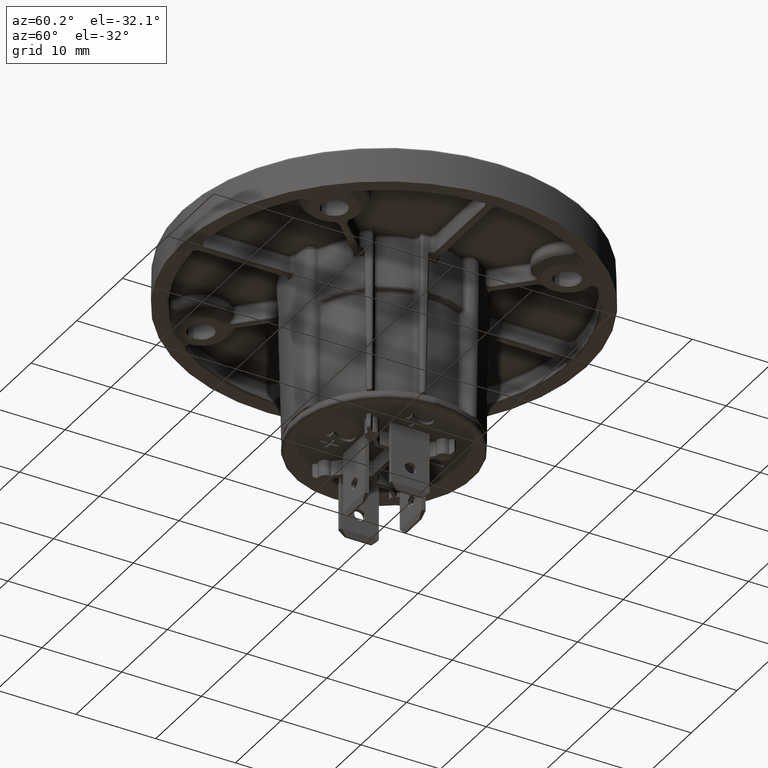
[diagram: clean part render]
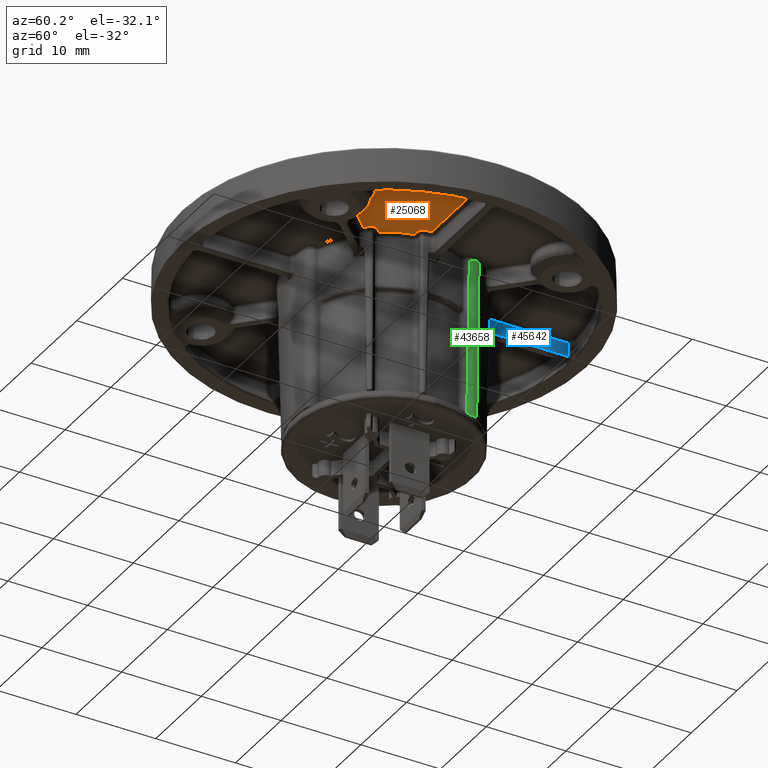
[diagram: same view with three faces highlighted in distinct colors, each labeled with its STEP entity id]
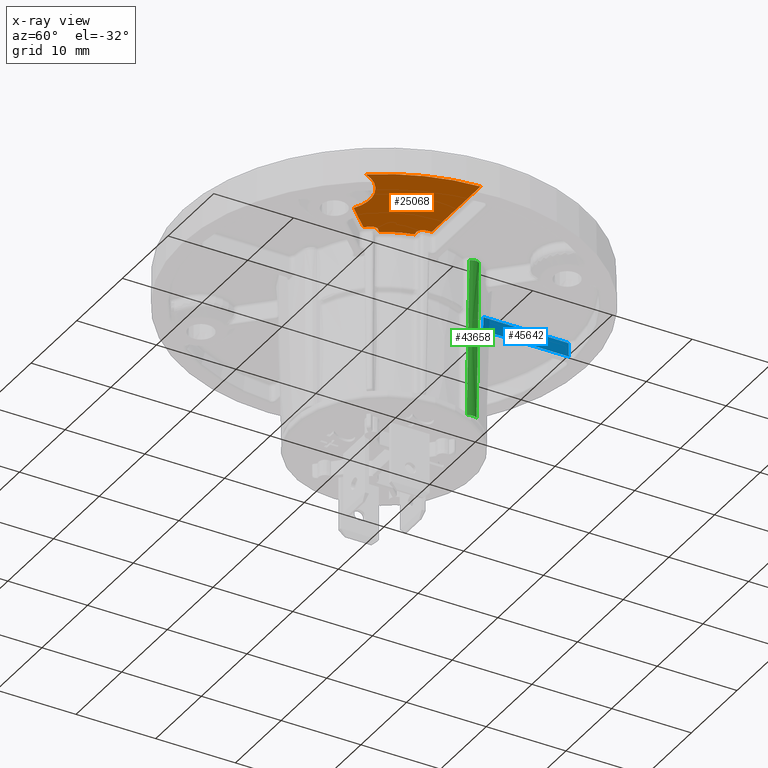
[diagram: x-ray of the same camera — body ghosted, the three highlighted faces saturated]
A machine part, auxiliary view with three faces highlighted in distinct colors.
The next image is the same camera in x-ray (body ghosted, the three faces saturated) — at least one of them is partly hidden behind the body in this view.
Their STEP definitions:

[orange] entity #25068 — the highlighted planar face has unit normal (0, 0, -1).
#749=CARTESIAN_POINT('',(1.46E1,-1.46E1,2.5E0));
#750=DIRECTION('',(0.E0,0.E0,-1.E0));
#751=DIRECTION('',(-5.335914431957E-1,8.457423790660E-1,0.E0));
#752=AXIS2_PLACEMENT_3D('',#749,#750,#751);
#754=CARTESIAN_POINT('',(0.E0,0.E0,2.5E0));
#755=DIRECTION('',(0.E0,0.E0,1.E0));
#756=DIRECTION('',(8.215173923747E-1,-5.701834564646E-1,0.E0));
#757=AXIS2_PLACEMENT_3D('',#754,#755,#756);
#759=DIRECTION('',(-1.E0,0.E0,0.E0));
#760=VECTOR('',#759,1.069033468450E1);
#761=CARTESIAN_POINT('',(2.288719151428E1,-9.913486315578E-1,2.5E0));
#762=LINE('',#761,#760);
#763=CARTESIAN_POINT('',(0.E0,0.E0,2.5E0));
#764=DIRECTION('',(0.E0,0.E0,-1.E0));
#765=DIRECTION('',(9.967131365640E-1,-8.101187197468E-2,0.E0));
#766=AXIS2_PLACEMENT_3D('',#763,#764,#765);
#768=CARTESIAN_POINT('',(1.211405447305E1,-1.730830111359E0,2.499999999799E0));
#769=CARTESIAN_POINT('',(1.211015580503E1,-1.758115645404E0,2.499999961242E0));
#770=CARTESIAN_POINT('',(1.209959231595E1,-1.812009052195E0,2.500000017988E0));
#771=CARTESIAN_POINT('',(1.207542266327E1,-1.891146775360E0,2.499999995180E0));
#772=CARTESIAN_POINT('',(1.204308515104E1,-1.967601566200E0,2.500000001291E0));
#773=CARTESIAN_POINT('',(1.200314059922E1,-2.040072878425E0,2.499999999654E0));
#774=CARTESIAN_POINT('',(1.195604096330E1,-2.107911068991E0,2.500000000093E0));
#775=CARTESIAN_POINT('',(1.190219544550E1,-2.170561966997E0,2.499999999976E0));
#776=CARTESIAN_POINT('',(1.184208128765E1,-2.227421885419E0,2.500000000005E0));
#777=CARTESIAN_POINT('',(1.177644244616E1,-2.277759233245E0,2.500000000005E0));
#778=CARTESIAN_POINT('',(1.170605980348E1,-2.321008898193E0,2.499999999974E0));
#779=CARTESIAN_POINT('',(1.163159383484E1,-2.356799443155E0,2.500000000098E0));
#780=CARTESIAN_POINT('',(1.155351749206E1,-2.384826628137E0,2.499999999634E0));
#781=CARTESIAN_POINT('',(1.147307249013E1,-2.404605786684E0,2.500000001368E0));
#782=CARTESIAN_POINT('',(1.139080439717E1,-2.416020682809E0,2.499999994896E0));
#783=CARTESIAN_POINT('',(1.130729684001E1,-2.418829008210E0,2.500000019050E0));
#784=CARTESIAN_POINT('',(1.125211113636E1,-2.414943447469E0,2.499999958953E0));
#785=CARTESIAN_POINT('',(1.122453112142E1,-2.411557224959E0,2.5E0));
#787=DIRECTION('',(-9.925461516413E-1,1.218693434052E-1,0.E0));
#788=VECTOR('',#787,4.411523677107E-1);
#789=CARTESIAN_POINT('',(1.122453112142E1,-2.411557224959E0,2.5E0));
#790=LINE('',#789,#788);
#791=CARTESIAN_POINT('',(0.E0,0.E0,2.5E0));
#792=DIRECTION('',(0.E0,0.E0,-1.E0));
#793=DIRECTION('',(9.769338326783E-1,-2.135422360295E-1,0.E0));
#794=AXIS2_PLACEMENT_3D('',#791,#792,#793);
#796=DIRECTION('',(7.880107536070E-1,-6.156614753253E-1,0.E0));
#797=VECTOR('',#796,4.411523672368E-1);
#798=CARTESIAN_POINT('',(9.294537728853E0,-5.960113087064E0,2.5E0));
#799=LINE('',#798,#797);
#800=CARTESIAN_POINT('',(9.642170538215E0,-6.231713604320E0,2.5E0));
#801=CARTESIAN_POINT('',(9.663944994044E0,-6.248725888620E0,2.499999961848E0));
#802=CARTESIAN_POINT('',(9.705487971778E0,-6.284800874714E0,2.500000017707E0));
#803=CARTESIAN_POINT('',(9.761982068087E0,-6.345069966367E0,2.499999995256E0));
#804=CARTESIAN_POINT('',(9.812244686065E0,-6.411247755981E0,2.500000001271E0));
#805=CARTESIAN_POINT('',(9.855260445012E0,-6.482073425784E0,2.499999999659E0));
#806=CARTESIAN_POINT('',(9.890666122525E0,-6.556776079795E0,2.500000000091E0));
#807=CARTESIAN_POINT('',(9.918176670466E0,-6.634665862816E0,2.499999999976E0));
#808=CARTESIAN_POINT('',(9.937548825450E0,-6.715097045364E0,2.500000000005E0));
#809=CARTESIAN_POINT('',(9.948520578630E0,-6.797119360497E0,2.500000000005E0));
#810=CARTESIAN_POINT('',(9.950974299218E0,-6.879713267169E0,2.499999999974E0));
#811=CARTESIAN_POINT('',(9.944923438561E0,-6.962066507390E0,2.500000000099E0));
#812=CARTESIAN_POINT('',(9.930380048580E0,-7.043591246149E0,2.499999999630E0));
#813=CARTESIAN_POINT('',(9.907449149926E0,-7.123276540744E0,2.500000001380E0));
#814=CARTESIAN_POINT('',(9.876462148456E0,-7.200089388962E0,2.499999994852E0));
#815=CARTESIAN_POINT('',(9.837371717544E0,-7.273833366797E0,2.500000019214E0));
#816=CARTESIAN_POINT('',(9.806507254112E0,-7.319786482359E0,2.499999958599E0));
#817=CARTESIAN_POINT('',(9.789811774184E0,-7.342048356572E0,2.499999999883E0));
#819=CARTESIAN_POINT('',(0.E0,0.E0,2.5E0));
#820=DIRECTION('',(0.E0,0.E0,-1.E0));
#821=DIRECTION('',(8.000121781955E-1,-5.999837620627E-1,0.E0));
#822=AXIS2_PLACEMENT_3D('',#819,#820,#821);
#824=DIRECTION('',(7.071067811063E-1,-7.071067812668E-1,0.E0));
#825=VECTOR('',#824,4.070085827151E0);
#826=CARTESIAN_POINT('',(9.325469513399E0,-7.923490833610E0,2.5E0));
#827=LINE('',#826,#825);
#22515=CARTESIAN_POINT('',(1.220345480179E1,-1.080147612313E1,2.5E0));
#22516=CARTESIAN_POINT('',(1.881985553870E1,-1.306213402317E1,2.5E0));
#22517=VERTEX_POINT('',#22515);
#22518=VERTEX_POINT('',#22516);
#22521=CARTESIAN_POINT('',(1.219685682979E1,-9.913486315576E-1,2.5E0));
#22522=CARTESIAN_POINT('',(1.211405447245E1,-1.730830111271E0,2.5E0));
#22523=VERTEX_POINT('',#22521);
#22524=VERTEX_POINT('',#22522);
#22529=VERTEX_POINT('',#785);
#22531=CARTESIAN_POINT('',(1.078666703657E1,-2.357794275565E0,2.5E0));
#22532=VERTEX_POINT('',#22531);
#22537=CARTESIAN_POINT('',(9.294537728851E0,-5.960113087062E0,2.5E0));
#22538=VERTEX_POINT('',#22537);
#22543=CARTESIAN_POINT('',(9.642170538215E0,-6.231713604320E0,2.5E0));
#22544=VERTEX_POINT('',#22543);
#22547=VERTEX_POINT('',#817);
#22549=CARTESIAN_POINT('',(9.325469513399E0,-7.923490833610E0,2.5E0));
#22550=VERTEX_POINT('',#22549);
#22757=CARTESIAN_POINT('',(2.288719151428E1,-9.913486315578E-1,2.5E0));
#22758=VERTEX_POINT('',#22757);
#25039=CARTESIAN_POINT('',(0.E0,0.E0,2.5E0));
#25040=DIRECTION('',(0.E0,0.E0,-1.E0));
#25041=DIRECTION('',(-1.E0,0.E0,0.E0));
#25042=AXIS2_PLACEMENT_3D('',#25039,#25040,#25041);
#25043=PLANE('',#25042);
#25045=ORIENTED_EDGE('',*,*,#25044,.T.);
#25047=ORIENTED_EDGE('',*,*,#25046,.T.);
#25049=ORIENTED_EDGE('',*,*,#25048,.T.);
#25051=ORIENTED_EDGE('',*,*,#25050,.T.);
#25053=ORIENTED_EDGE('',*,*,#25052,.T.);
#25055=ORIENTED_EDGE('',*,*,#25054,.T.);
#25057=ORIENTED_EDGE('',*,*,#25056,.T.);
#25059=ORIENTED_EDGE('',*,*,#25058,.T.);
#25061=ORIENTED_EDGE('',*,*,#25060,.T.);
#25063=ORIENTED_EDGE('',*,*,#25062,.T.);
#25065=ORIENTED_EDGE('',*,*,#25064,.T.);
#25066=EDGE_LOOP('',(#25045,#25047,#25049,#25051,#25053,#25055,#25057,#25059,
#25061,#25063,#25065));
#25067=FACE_OUTER_BOUND('',#25066,.F.);
#25068=ADVANCED_FACE('',(#25067),#25043,.T.);
#753=CIRCLE('',#752,4.491348631558E0);
#758=CIRCLE('',#757,2.290865136844E1);
#767=CIRCLE('',#766,1.223707843546E1);
#786=B_SPLINE_CURVE_WITH_KNOTS('',3,(#768,#769,#770,#771,#772,#773,#774,#775,
#776,#777,#778,#779,#780,#781,#782,#783,#784,#785),.UNSPECIFIED.,.F.,.F.,(4,1,1,
1,1,1,1,1,1,1,1,1,1,1,1,4),(0.E0,6.666666666667E-2,1.333333333333E-1,2.E-1,
2.666666666667E-1,3.333333333333E-1,4.E-1,4.666666666667E-1,5.333333333333E-1,
6.E-1,6.666666666667E-1,7.333333333333E-1,8.E-1,8.666666666667E-1,
9.333333333333E-1,1.E0),.UNSPECIFIED.);
#795=CIRCLE('',#794,1.104134863156E1);
#818=B_SPLINE_CURVE_WITH_KNOTS('',3,(#800,#801,#802,#803,#804,#805,#806,#807,
#808,#809,#810,#811,#812,#813,#814,#815,#816,#817),.UNSPECIFIED.,.F.,.F.,(4,1,1,
1,1,1,1,1,1,1,1,1,1,1,1,4),(0.E0,6.666666666667E-2,1.333333333333E-1,2.E-1,
2.666666666667E-1,3.333333333333E-1,4.E-1,4.666666666667E-1,5.333333333333E-1,
6.E-1,6.666666666667E-1,7.333333333333E-1,8.E-1,8.666666666667E-1,
9.333333333333E-1,1.E0),.UNSPECIFIED.);
#823=CIRCLE('',#822,1.223707843546E1);
#25044=EDGE_CURVE('',#22517,#22518,#753,.T.);
#25046=EDGE_CURVE('',#22518,#22758,#758,.T.);
#25048=EDGE_CURVE('',#22758,#22523,#762,.T.);
#25050=EDGE_CURVE('',#22523,#22524,#767,.T.);
#25052=EDGE_CURVE('',#22524,#22529,#786,.T.);
#25054=EDGE_CURVE('',#22529,#22532,#790,.T.);
#25056=EDGE_CURVE('',#22532,#22538,#795,.T.);
#25058=EDGE_CURVE('',#22538,#22544,#799,.T.);
#25060=EDGE_CURVE('',#22544,#22547,#818,.T.);
#25062=EDGE_CURVE('',#22547,#22550,#823,.T.);
#25064=EDGE_CURVE('',#22550,#22517,#827,.T.);

[blue] entity #45642 — the highlighted planar face has unit normal (-0.9998, 0, 0.0175).
#15822=DIRECTION('',(0.E0,1.E0,0.E0));
#15823=VECTOR('',#15822,1.076418124562E1);
#15824=CARTESIAN_POINT('',(4.615074672916E-1,1.215423019909E1,
2.947642780688E-1));
#15825=LINE('',#15824,#15823);
#15826=CARTESIAN_POINT('',(4.615074672916E-1,1.215423019909E1,
2.947642780688E-1));
#15827=CARTESIAN_POINT('',(4.646380039547E-1,1.215869363695E1,
4.741126033804E-1));
#15828=CARTESIAN_POINT('',(4.710272910981E-1,1.216780141361E1,
8.401546186722E-1));
#15829=CARTESIAN_POINT('',(4.809262702163E-1,1.218190601213E1,
1.407266752532E0));
#15830=CARTESIAN_POINT('',(4.878748087489E-1,1.219180216703E1,
1.805348258468E0));
#15831=CARTESIAN_POINT('',(4.914247839796E-1,1.219685682979E1,
2.008726203219E0));
#15833=DIRECTION('',(0.E0,-1.E0,1.225465065147E-14));
#15834=VECTOR('',#15833,1.069033468449E1);
#15835=CARTESIAN_POINT('',(4.914247839797E-1,2.288719151428E1,
2.008726203219E0));
#15836=LINE('',#15835,#15834);
#15837=CARTESIAN_POINT('',(4.615074672917E-1,2.291841144471E1,
2.947642780688E-1));
#15838=CARTESIAN_POINT('',(4.646377819999E-1,2.291514705958E1,
4.740998875966E-1));
#15839=CARTESIAN_POINT('',(4.710266996260E-1,2.290848310313E1,
8.401207332578E-1));
#15840=CARTESIAN_POINT('',(4.809193752416E-1,2.289815999763E1,
1.406871739701E0));
#15841=CARTESIAN_POINT('',(4.878718222502E-1,2.289090170237E1,
1.805177162061E0));
#15842=CARTESIAN_POINT('',(4.914247839797E-1,2.288719151428E1,
2.008726203219E0));
#22571=CARTESIAN_POINT('',(4.914247839794E-1,1.219685682979E1,
2.008726203217E0));
#22573=VERTEX_POINT('',#22571);
#22595=CARTESIAN_POINT('',(4.914247839797E-1,2.288719151428E1,
2.008726203219E0));
#22596=VERTEX_POINT('',#22595);
#22677=CARTESIAN_POINT('',(4.615074672916E-1,1.215423019909E1,
2.947642780688E-1));
#22678=CARTESIAN_POINT('',(4.615074672917E-1,2.291841144471E1,
2.947642780688E-1));
#22679=VERTEX_POINT('',#22677);
#22680=VERTEX_POINT('',#22678);
#45629=CARTESIAN_POINT('',(5.E-1,1.064792487907E1,2.5E0));
#45630=DIRECTION('',(-9.998476951564E-1,0.E0,1.745240643728E-2));
#45631=DIRECTION('',(0.E0,1.E0,0.E0));
#45632=AXIS2_PLACEMENT_3D('',#45629,#45630,#45631);
#45633=PLANE('',#45632);
#45634=ORIENTED_EDGE('',*,*,#45620,.F.);
#45636=ORIENTED_EDGE('',*,*,#45635,.T.);
#45638=ORIENTED_EDGE('',*,*,#45637,.F.);
#45639=ORIENTED_EDGE('',*,*,#45522,.F.);
#45640=EDGE_LOOP('',(#45634,#45636,#45638,#45639));
#45641=FACE_OUTER_BOUND('',#45640,.F.);
#45642=ADVANCED_FACE('',(#45641),#45633,.F.);
#15832=B_SPLINE_CURVE_WITH_KNOTS('',3,(#15826,#15827,#15828,#15829,#15830,
#15831),.UNSPECIFIED.,.F.,.F.,(4,1,1,4),(0.E0,3.333333333333E-1,
6.666666666667E-1,1.E0),.UNSPECIFIED.);
#15843=B_SPLINE_CURVE_WITH_KNOTS('',3,(#15837,#15838,#15839,#15840,#15841,
#15842),.UNSPECIFIED.,.F.,.F.,(4,1,1,4),(0.E0,3.333333333333E-1,
6.666666666667E-1,1.E0),.UNSPECIFIED.);
#45522=EDGE_CURVE('',#22680,#22596,#15843,.T.);
#45620=EDGE_CURVE('',#22679,#22680,#15825,.T.);
#45635=EDGE_CURVE('',#22679,#22573,#15832,.T.);
#45637=EDGE_CURVE('',#22596,#22573,#15836,.T.);

[green] entity #43658 — the highlighted face is a freeform B-spline surface patch.
#255=CARTESIAN_POINT('',(9.290844623760E0,6.298856419813E0,-1.755785308497E1));
#256=CARTESIAN_POINT('',(9.340853694548E0,6.294012938452E0,-1.608091362074E1));
#257=CARTESIAN_POINT('',(9.442834526262E0,6.283948169545E0,-1.306253116069E1));
#258=CARTESIAN_POINT('',(9.600283992069E0,6.267811988744E0,-8.381654396618E0));
#259=CARTESIAN_POINT('',(9.766202445639E0,6.250169136437E0,-3.426837437535E0));
#260=CARTESIAN_POINT('',(9.885690483850E0,6.236975935440E0,1.583066011851E-1));
#261=CARTESIAN_POINT('',(9.947349244912E0,6.230030120138E0,2.013088475997E0));
#14967=CARTESIAN_POINT('',(9.229200823092E0,5.095324370475E0,
-1.755785308449E1));
#14968=CARTESIAN_POINT('',(9.249514236513E0,5.119540662216E0,
-1.755804054583E1));
#14969=CARTESIAN_POINT('',(9.287412899236E0,5.169442882973E0,
-1.755838766028E1));
#14970=CARTESIAN_POINT('',(9.335421239196E0,5.246332312701E0,
-1.755882073029E1));
#14971=CARTESIAN_POINT('',(9.376784586233E0,5.328228791271E0,
-1.755918587213E1));
#14972=CARTESIAN_POINT('',(9.410327449536E0,5.413260828014E0,
-1.755947264779E1));
#14973=CARTESIAN_POINT('',(9.436017159429E0,5.501084509761E0,
-1.755968084306E1));
#14974=CARTESIAN_POINT('',(9.453569271295E0,5.590863773222E0,
-1.755980810878E1));
#14975=CARTESIAN_POINT('',(9.462858855870E0,5.681867133768E0,
-1.755985357817E1));
#14976=CARTESIAN_POINT('',(9.463793830447E0,5.773369910199E0,
-1.755981671499E1));
#14977=CARTESIAN_POINT('',(9.456403045456E0,5.864469116749E0,
-1.755969825389E1));
#14978=CARTESIAN_POINT('',(9.440620277222E0,5.954861057577E0,
-1.755949770733E1));
#14979=CARTESIAN_POINT('',(9.416997469941E0,6.042415098472E0,
-1.755922154294E1));
#14980=CARTESIAN_POINT('',(9.384528483640E0,6.130117868509E0,
-1.755885844385E1));
#14981=CARTESIAN_POINT('',(9.342694830950E0,6.216718226353E0,
-1.755840377276E1));
#14982=CARTESIAN_POINT('',(9.309087834323E0,6.271938493667E0,
-1.755804593830E1));
#14983=CARTESIAN_POINT('',(9.290844623760E0,6.298856419813E0,
-1.755785308497E1));
#14985=CARTESIAN_POINT('',(9.947349244912E0,6.230030120138E0,2.013088475997E0));
#14986=CARTESIAN_POINT('',(9.962198963670E0,6.206332924283E0,2.013354329805E0));
#14987=CARTESIAN_POINT('',(9.989881548771E0,6.157723765844E0,2.013855337384E0));
#14988=CARTESIAN_POINT('',(1.002501135017E1,6.081973564742E0,2.014506429431E0));
#14989=CARTESIAN_POINT('',(1.005384427674E1,6.003123623867E0,2.015059677459E0));
#14990=CARTESIAN_POINT('',(1.007588564955E1,5.922420849737E0,2.015505397992E0));
#14991=CARTESIAN_POINT('',(1.009110746935E1,5.840222989812E0,2.015842863743E0));
#14992=CARTESIAN_POINT('',(1.009941328974E1,5.757036024099E0,2.016069907084E0));
#14993=CARTESIAN_POINT('',(1.010074083071E1,5.673371003478E0,2.016184965930E0));
#14994=CARTESIAN_POINT('',(1.009507007899E1,5.589917128942E0,2.016186940691E0));
#14995=CARTESIAN_POINT('',(1.008245983551E1,5.507301773812E0,2.016076075984E0));
#14996=CARTESIAN_POINT('',(1.006299303275E1,5.425983487151E0,2.015853199254E0));
#14997=CARTESIAN_POINT('',(1.003671527826E1,5.346375609854E0,2.015518565377E0));
#14998=CARTESIAN_POINT('',(1.000397620753E1,5.269453255783E0,2.015076767351E0));
#14999=CARTESIAN_POINT('',(9.964493315594E0,5.194748208636E0,2.014523644327E0));
#15000=CARTESIAN_POINT('',(9.918553237222E0,5.123264732272E0,2.013863005876E0));
#15001=CARTESIAN_POINT('',(9.884075752271E0,5.078480837113E0,2.013356935166E0));
#15002=CARTESIAN_POINT('',(9.865919042870E0,5.056853363531E0,2.013088474154E0));
#15047=CARTESIAN_POINT('',(9.229200823092E0,5.095324370475E0,
-1.755785308449E1));
#15048=CARTESIAN_POINT('',(9.277607070415E0,5.092845051106E0,
-1.608091394210E1));
#15049=CARTESIAN_POINT('',(9.376365324349E0,5.087577493281E0,
-1.306253124618E1));
#15050=CARTESIAN_POINT('',(9.528983314556E0,5.078770690187E0,
-8.381654657413E0));
#15051=CARTESIAN_POINT('',(9.689961874110E0,5.068767822203E0,
-3.426837609413E0));
#15052=CARTESIAN_POINT('',(9.806005958659E0,5.061011919322E0,
1.583073376951E-1));
#15053=CARTESIAN_POINT('',(9.865919042870E0,5.056853363531E0,2.013088474154E0));
#22390=VERTEX_POINT('',#14985);
#22391=VERTEX_POINT('',#15002);
#23000=CARTESIAN_POINT('',(9.229200823092E0,5.095324370475E0,
-1.755785308449E1));
#23002=VERTEX_POINT('',#23000);
#23007=VERTEX_POINT('',#14983);
#43621=CARTESIAN_POINT('',(9.229200823062E0,5.095324370477E0,
-1.755785308540E1));
#43622=CARTESIAN_POINT('',(9.274623129719E0,5.092997885551E0,
-1.617195795101E1));
#43623=CARTESIAN_POINT('',(9.394119293878E0,5.086636084824E0,
-1.252004679110E1));
#43624=CARTESIAN_POINT('',(9.594405691060E0,5.074927719311E0,
-6.373451054539E0));
#43625=CARTESIAN_POINT('',(9.761040422040E0,5.064086656235E0,
-1.232592812716E0));
#43626=CARTESIAN_POINT('',(9.853939916145E0,5.057684932847E0,1.642237828747E0));
#43627=CARTESIAN_POINT('',(9.866219130565E0,5.056832533259E0,2.022378578810E0));
#43628=CARTESIAN_POINT('',(9.527334182665E0,5.450999610525E0,
-1.756702724956E1));
#43629=CARTESIAN_POINT('',(9.572757327075E0,5.448673082691E0,
-1.618110655421E1));
#43630=CARTESIAN_POINT('',(9.692255667497E0,5.442311166046E0,
-1.252912888437E1));
#43631=CARTESIAN_POINT('',(9.892545595158E0,5.430602593924E0,
-6.382424795288E0));
#43632=CARTESIAN_POINT('',(1.005918314464E1,5.419761347274E0,
-1.241479594563E0));
#43633=CARTESIAN_POINT('',(1.015208417292E1,5.413359518164E0,1.633398522904E0));
#43634=CARTESIAN_POINT('',(1.016436358948E1,5.412507104544E0,2.013545530803E0));
#43635=CARTESIAN_POINT('',(9.551078452996E0,5.914582128968E0,
-1.756702724951E1));
#43636=CARTESIAN_POINT('',(9.596502265998E0,5.912255566889E0,
-1.618108615453E1));
#43637=CARTESIAN_POINT('',(9.716002343245E0,5.905893557733E0,
-1.252905540461E1));
#43638=CARTESIAN_POINT('',(9.916295088504E0,5.894184820720E0,
-6.382264841826E0));
#43639=CARTESIAN_POINT('',(1.008293488737E1,5.883343427565E0,
-1.241250241161E0));
#43640=CARTESIAN_POINT('',(1.017583714004E1,5.876941514080E0,1.633665765836E0));
#43641=CARTESIAN_POINT('',(1.018811671793E1,5.876089089261E0,2.013817767973E0));
#43642=CARTESIAN_POINT('',(9.290844628135E0,6.298856422783E0,
-1.755785308527E1));
#43643=CARTESIAN_POINT('',(9.336268670560E0,6.296529848954E0,
-1.617190499029E1));
#43644=CARTESIAN_POINT('',(9.455769343789E0,6.290167808053E0,
-1.251985602626E1));
#43645=CARTESIAN_POINT('',(9.656063055887E0,6.278459014459E0,
-6.373035790567E0));
#43646=CARTESIAN_POINT('',(9.822703626620E0,6.267617571031E0,
-1.231997375744E0));
#43647=CARTESIAN_POINT('',(9.915606299432E0,6.261215628594E0,1.642931632809E0));
#43648=CARTESIAN_POINT('',(9.927885932672E0,6.260363199933E0,2.023085348688E0));
#43649=(BOUNDED_SURFACE()B_SPLINE_SURFACE(3,3,((#43621,#43622,#43623,#43624,
#43625,#43626,#43627),(#43628,#43629,#43630,#43631,#43632,#43633,#43634),
(#43635,#43636,#43637,#43638,#43639,#43640,#43641),(#43642,#43643,#43644,#43645,
#43646,#43647,#43648)),.UNSPECIFIED.,.F.,.F.,.F.)B_SPLINE_SURFACE_WITH_KNOTS((4,
4),(4,1,1,1,4),(0.E0,1.E0),(3.669915139951E-1,4.120223292920E-1,
4.856500138078E-1,5.667067910216E-1,5.790582135459E-1),.UNSPECIFIED.)GEOMETRIC_REPRESENTATION_ITEM()RATIONAL_B_SPLINE_SURFACE(((1.112299122272E0,
1.112299122272E0,1.112299122272E0,1.112299122272E0,1.112299122272E0,
1.112299122272E0,1.112299122272E0),(9.625669592427E-1,9.625669592427E-1,
9.625669592427E-1,9.625669592427E-1,9.625669592427E-1,9.625669592427E-1,
9.625669592427E-1),(9.625669592427E-1,9.625669592427E-1,9.625669592427E-1,
9.625669592427E-1,9.625669592427E-1,9.625669592427E-1,9.625669592427E-1),(
1.112299122272E0,1.112299122272E0,1.112299122272E0,1.112299122272E0,
1.112299122272E0,1.112299122272E0,1.112299122272E0)))REPRESENTATION_ITEM('')SURFACE());
#43650=ORIENTED_EDGE('',*,*,#43612,.F.);
#43652=ORIENTED_EDGE('',*,*,#43651,.T.);
#43654=ORIENTED_EDGE('',*,*,#43653,.F.);
#43655=ORIENTED_EDGE('',*,*,#24710,.F.);
#43656=EDGE_LOOP('',(#43650,#43652,#43654,#43655));
#43657=FACE_OUTER_BOUND('',#43656,.F.);
#43658=ADVANCED_FACE('',(#43657),#43649,.T.);
#262=B_SPLINE_CURVE_WITH_KNOTS('',3,(#255,#256,#257,#258,#259,#260,#261),
.UNSPECIFIED.,.F.,.F.,(4,1,1,1,4),(0.E0,2.5E-1,5.E-1,7.5E-1,1.E0),
.UNSPECIFIED.);
#14984=B_SPLINE_CURVE_WITH_KNOTS('',3,(#14967,#14968,#14969,#14970,#14971,
#14972,#14973,#14974,#14975,#14976,#14977,#14978,#14979,#14980,#14981,#14982,
#14983),.UNSPECIFIED.,.F.,.F.,(4,1,1,1,1,1,1,1,1,1,1,1,1,1,4),(0.E0,
7.142857142857E-2,1.428571428571E-1,2.142857142857E-1,2.857142857143E-1,
3.571428571429E-1,4.285714285714E-1,5.E-1,5.714285714286E-1,6.428571428571E-1,
7.142857142857E-1,7.857142857143E-1,8.571428571429E-1,9.285714285714E-1,1.E0),
.UNSPECIFIED.);
#15003=B_SPLINE_CURVE_WITH_KNOTS('',3,(#14985,#14986,#14987,#14988,#14989,
#14990,#14991,#14992,#14993,#14994,#14995,#14996,#14997,#14998,#14999,#15000,
#15001,#15002),.UNSPECIFIED.,.F.,.F.,(4,1,1,1,1,1,1,1,1,1,1,1,1,1,1,4),(0.E0,
6.666666666667E-2,1.333333333333E-1,2.E-1,2.666666666667E-1,3.333333333333E-1,
4.E-1,4.666666666667E-1,5.333333333333E-1,6.E-1,6.666666666667E-1,
7.333333333333E-1,8.E-1,8.666666666667E-1,9.333333333333E-1,1.E0),
.UNSPECIFIED.);
#15054=B_SPLINE_CURVE_WITH_KNOTS('',3,(#15047,#15048,#15049,#15050,#15051,
#15052,#15053),.UNSPECIFIED.,.F.,.F.,(4,1,1,1,4),(0.E0,2.5E-1,5.E-1,7.5E-1,
1.E0),.UNSPECIFIED.);
#24710=EDGE_CURVE('',#23007,#22390,#262,.T.);
#43612=EDGE_CURVE('',#23002,#23007,#14984,.T.);
#43651=EDGE_CURVE('',#23002,#22391,#15054,.T.);
#43653=EDGE_CURVE('',#22390,#22391,#15003,.T.);